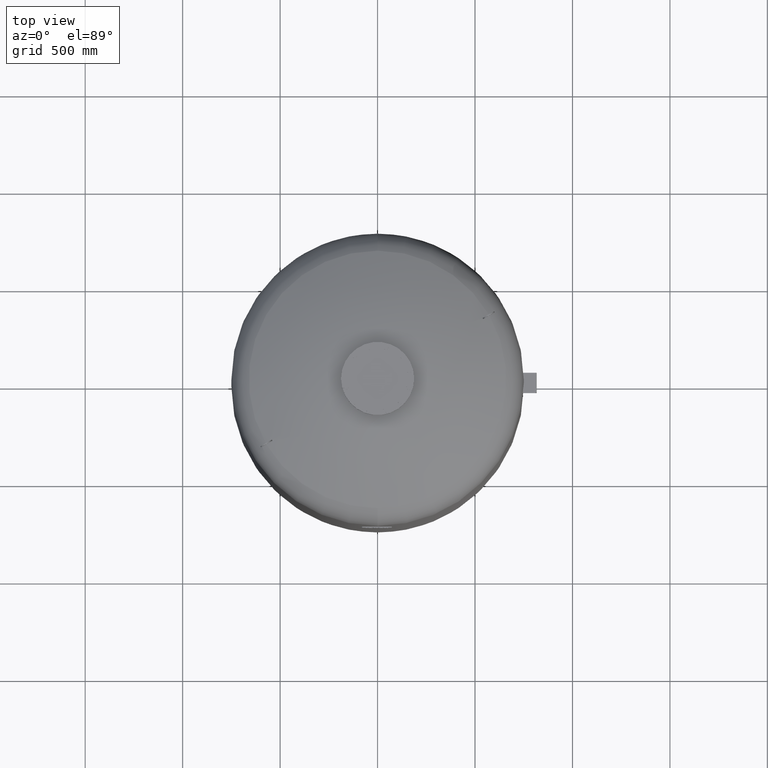
[diagram: clean part render]
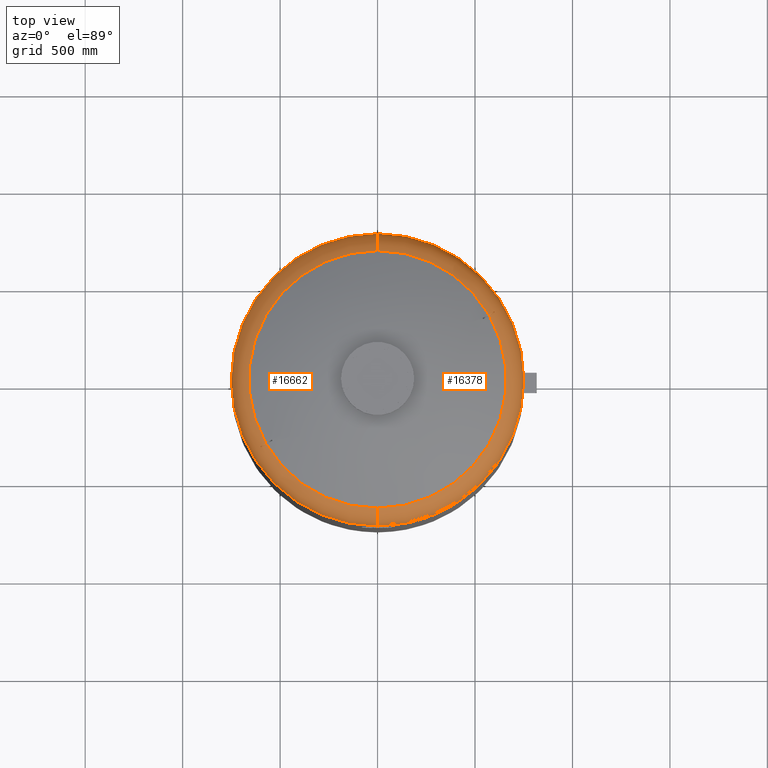
[diagram: same view with one multi-face feature highlighted, each face labeled with its STEP entity id]
A machine part, top view. The highlighted faces form ONE feature: a constant-radius fillet chain: 2 tangent blend faces with common blend radius 159 mm. The faces share edges in the B-rep.
Their STEP definitions:
[1] entity #16662 (Torus):
#16195=CARTESIAN_POINT('',(-750.0,3.761120E-014,2678.762332584101800));
#16196=VERTEX_POINT('',#16195);
#16203=CARTESIAN_POINT('',(1.267436E-013,750.0,2678.762332584101800));
#16204=VERTEX_POINT('',#16203);
#16205=CARTESIAN_POINT('',(1.459986E-014,-5.423428E-014,2678.762332584101800));
#16206=DIRECTION('',(0.0,0.0,-1.0));
#16207=DIRECTION('',(1.0,0.0,0.0));
#16208=AXIS2_PLACEMENT_3D('',#16205,#16206,#16207);
#16209=CIRCLE('',#16208,750.0);
#16210=EDGE_CURVE('',#16196,#16204,#16209,.T.);
#16290=CARTESIAN_POINT('',(3.489809E-014,-750.0,2678.762332584101800));
#16291=VERTEX_POINT('',#16290);
#16292=CARTESIAN_POINT('',(2.782883E-014,-660.606666666666800,2821.716562866229200));
#16293=VERTEX_POINT('',#16292);
#16294=CARTESIAN_POINT('',(3.489809E-014,-591.0,2678.762332584101800));
#16295=DIRECTION('',(-1.0,0.0,0.0));
#16296=DIRECTION('',(0.0,-1.0,0.0));
#16297=AXIS2_PLACEMENT_3D('',#16294,#16295,#16296);
#16298=CIRCLE('',#16297,159.0);
#16299=EDGE_CURVE('',#16291,#16293,#16298,.T.);
#16309=CARTESIAN_POINT('',(1.087271E-013,660.606666666666800,2821.716562866229200));
#16310=VERTEX_POINT('',#16309);
#16311=CARTESIAN_POINT('',(1.072723E-013,591.0,2678.762332584101800));
#16312=DIRECTION('',(1.0,0.0,0.0));
#16313=DIRECTION('',(0.0,1.0,0.0));
#16314=AXIS2_PLACEMENT_3D('',#16311,#16312,#16313);
#16315=CIRCLE('',#16314,159.0);
#16316=EDGE_CURVE('',#16204,#16310,#16315,.T.);
#16426=CARTESIAN_POINT('',(-570.596255916196580,-332.898003566952920,2821.716562866229700));
#16427=VERTEX_POINT('',#16426);
#16428=CARTESIAN_POINT('',(-588.588482349331340,-343.285820341443810,2809.575471650438900));
#16429=VERTEX_POINT('',#16428);
#16430=CARTESIAN_POINT('',(-570.596255916196580,-332.898003566952920,2821.716562866229700));
#16431=CARTESIAN_POINT('',(-572.053991207973350,-333.739627430067460,2820.896971483751700));
#16432=CARTESIAN_POINT('',(-573.514766784388030,-334.583006602336130,2820.038819520509200));
#16433=CARTESIAN_POINT('',(-576.976356895228950,-336.581556584654270,2817.913031156073000));
#16434=CARTESIAN_POINT('',(-578.974623379368950,-337.735256277185040,2816.612231014925300));
#16435=CARTESIAN_POINT('',(-582.931609407494880,-340.019823225703130,2813.881663004374300));
#16436=CARTESIAN_POINT('',(-584.890327860480620,-341.150689851801190,2812.451893026950500));
#16437=CARTESIAN_POINT('',(-587.410163811145820,-342.605517816231330,2810.507741414689900));
#16438=CARTESIAN_POINT('',(-588.001034993596930,-342.946657452475790,2810.044139472540300));
#16439=CARTESIAN_POINT('',(-588.588482349331340,-343.285820341443810,2809.575471650438900));
#16440=B_SPLINE_CURVE_WITH_KNOTS('',3,(#16430,#16431,#16432,#16433,#16434,#16435,#16436,#16437,#16438,#16439),.UNSPECIFIED.,.F.,.U.,(4,2,2,2,4),(774.656357685334110,780.010496801651020,787.369065281617960,794.727633761584910,796.996981542536560),.UNSPECIFIED.);
#16441=EDGE_CURVE('',#16427,#16429,#16440,.T.);
#16543=CARTESIAN_POINT('',(-591.588482349331340,-338.089667918737230,2809.575471650438900));
#16544=VERTEX_POINT('',#16543);
#16545=CARTESIAN_POINT('',(-588.588482349331340,-343.285820341443810,2809.575471650438900));
#16546=CARTESIAN_POINT('',(-589.090111222557650,-342.418391231104920,2809.578030124753200));
#16547=CARTESIAN_POINT('',(-589.590425441359340,-341.552525995020690,2809.579301453786200));
#16548=CARTESIAN_POINT('',(-590.089401200238290,-340.688274628897030,2809.579301453786200));
#16549=CARTESIAN_POINT('',(-590.588376959113930,-339.824023262779290,2809.579301453786200));
#16550=CARTESIAN_POINT('',(-591.088081140412330,-338.957805821386390,2809.578030124753200));
#16551=CARTESIAN_POINT('',(-591.588482349331340,-338.089667918737230,2809.575471650438900));
#16552=B_SPLINE_CURVE_WITH_KNOTS('',3,(#16545,#16546,#16547,#16548,#16549,#16550,#16551),.UNSPECIFIED.,.F.,.U.,(4,3,4),(-2.993854553274037,0.0,2.993854553253479),.UNSPECIFIED.);
#16553=EDGE_CURVE('',#16429,#16544,#16552,.T.);
#16578=CARTESIAN_POINT('',(-573.596255916196580,-327.701851144246290,2821.716562866229700));
#16579=VERTEX_POINT('',#16578);
#16580=CARTESIAN_POINT('',(-591.588482349331340,-338.089667918737230,2809.575471650438900));
#16581=CARTESIAN_POINT('',(-591.001091399295430,-337.750537595614450,2810.044094471851200));
#16582=CARTESIAN_POINT('',(-590.410277309616280,-337.409430921897070,2810.507652363015000));
#16583=CARTESIAN_POINT('',(-587.890496100690370,-335.954634562624850,2812.451768031998700));
#16584=CARTESIAN_POINT('',(-585.931774475118230,-334.823766104833230,2813.881544856047600));
#16585=CARTESIAN_POINT('',(-581.974781685757190,-332.539195252714250,2816.612126014599200));
#16586=CARTESIAN_POINT('',(-579.976511612969600,-331.385493488276780,2817.912932457119000));
#16587=CARTESIAN_POINT('',(-576.514867502691460,-329.386912329369070,2820.038760350182700));
#16588=CARTESIAN_POINT('',(-575.054041405248540,-328.543503988771140,2820.896943261032400));
#16589=CARTESIAN_POINT('',(-573.596255916196580,-327.701851144246290,2821.716562866229700));
#16590=B_SPLINE_CURVE_WITH_KNOTS('',3,(#16580,#16581,#16582,#16583,#16584,#16585,#16586,#16587,#16588,#16589),.UNSPECIFIED.,.F.,.U.,(4,2,2,2,4),(144.901635701804910,147.170765481127490,154.529352849647950,161.887940218168410,167.242267557251490),.UNSPECIFIED.);
#16591=EDGE_CURVE('',#16544,#16579,#16590,.T.);
#16628=CARTESIAN_POINT('',(3.489809E-014,-5.423428E-014,2678.762332584101800));
#16629=DIRECTION('',(4.945121E-017,-1.836970E-016,-1.0));
#16630=DIRECTION('',(0.0,-1.0,0.0));
#16631=AXIS2_PLACEMENT_3D('',#16628,#16629,#16630);
#16632=TOROIDAL_SURFACE('',#16631,591.0,159.0);
#16633=ORIENTED_EDGE('',*,*,#16299,.T.);
#16634=CARTESIAN_POINT('',(7.530601E-015,-2.797401E-014,2821.716562866229200));
#16635=DIRECTION('',(0.0,0.0,-1.0));
#16636=DIRECTION('',(1.0,0.0,0.0));
#16637=AXIS2_PLACEMENT_3D('',#16634,#16635,#16636);
#16638=CIRCLE('',#16637,660.606666666666800);
#16639=EDGE_CURVE('',#16293,#16427,#16638,.T.);
#16640=ORIENTED_EDGE('',*,*,#16639,.T.);
#16641=ORIENTED_EDGE('',*,*,#16441,.T.);
#16642=ORIENTED_EDGE('',*,*,#16553,.T.);
#16643=ORIENTED_EDGE('',*,*,#16591,.T.);
#16644=CARTESIAN_POINT('',(7.530601E-015,-2.797401E-014,2821.716562866229200));
#16645=DIRECTION('',(0.0,0.0,-1.0));
#16646=DIRECTION('',(1.0,0.0,0.0));
#16647=AXIS2_PLACEMENT_3D('',#16644,#16645,#16646);
#16648=CIRCLE('',#16647,660.606666666666800);
#16649=EDGE_CURVE('',#16579,#16310,#16648,.T.);
#16650=ORIENTED_EDGE('',*,*,#16649,.T.);
#16651=ORIENTED_EDGE('',*,*,#16316,.F.);
#16652=ORIENTED_EDGE('',*,*,#16210,.F.);
#16653=CARTESIAN_POINT('',(1.459986E-014,-5.423428E-014,2678.762332584101800));
#16654=DIRECTION('',(0.0,0.0,-1.0));
#16655=DIRECTION('',(1.0,0.0,0.0));
#16656=AXIS2_PLACEMENT_3D('',#16653,#16654,#16655);
#16657=CIRCLE('',#16656,750.0);
#16658=EDGE_CURVE('',#16291,#16196,#16657,.T.);
#16659=ORIENTED_EDGE('',*,*,#16658,.F.);
#16660=EDGE_LOOP('',(#16633,#16640,#16641,#16642,#16643,#16650,#16651,#16652,#16659));
#16661=FACE_OUTER_BOUND('',#16660,.T.);
#16662=ADVANCED_FACE('',(#16661),#16632,.T.);
[2] entity #16378 (Torus):
#16178=CARTESIAN_POINT('',(750.0,-5.423428E-014,2678.762332584101800));
#16179=VERTEX_POINT('',#16178);
#16203=CARTESIAN_POINT('',(1.267436E-013,750.0,2678.762332584101800));
#16204=VERTEX_POINT('',#16203);
#16212=CARTESIAN_POINT('',(1.459986E-014,-5.423428E-014,2678.762332584101800));
#16213=DIRECTION('',(0.0,0.0,-1.0));
#16214=DIRECTION('',(1.0,0.0,0.0));
#16215=AXIS2_PLACEMENT_3D('',#16212,#16213,#16214);
#16216=CIRCLE('',#16215,750.0);
#16217=EDGE_CURVE('',#16204,#16179,#16216,.T.);
#16285=CARTESIAN_POINT('',(3.489809E-014,-5.423428E-014,2678.762332584101800));
#16286=DIRECTION('',(4.945121E-017,-1.836970E-016,-1.0));
#16287=DIRECTION('',(0.0,-1.0,0.0));
#16288=AXIS2_PLACEMENT_3D('',#16285,#16286,#16287);
#16289=TOROIDAL_SURFACE('',#16288,591.0,159.0);
#16290=CARTESIAN_POINT('',(3.489809E-014,-750.0,2678.762332584101800));
#16291=VERTEX_POINT('',#16290);
#16292=CARTESIAN_POINT('',(2.782883E-014,-660.606666666666800,2821.716562866229200));
#16293=VERTEX_POINT('',#16292);
#16294=CARTESIAN_POINT('',(3.489809E-014,-591.0,2678.762332584101800));
#16295=DIRECTION('',(-1.0,0.0,0.0));
#16296=DIRECTION('',(0.0,-1.0,0.0));
#16297=AXIS2_PLACEMENT_3D('',#16294,#16295,#16296);
#16298=CIRCLE('',#16297,159.0);
#16299=EDGE_CURVE('',#16291,#16293,#16298,.T.);
#16300=ORIENTED_EDGE('',*,*,#16299,.F.);
#16301=CARTESIAN_POINT('',(1.459986E-014,-5.423428E-014,2678.762332584101800));
#16302=DIRECTION('',(0.0,0.0,-1.0));
#16303=DIRECTION('',(1.0,0.0,0.0));
#16304=AXIS2_PLACEMENT_3D('',#16301,#16302,#16303);
#16305=CIRCLE('',#16304,750.0);
#16306=EDGE_CURVE('',#16179,#16291,#16305,.T.);
#16307=ORIENTED_EDGE('',*,*,#16306,.F.);
#16308=ORIENTED_EDGE('',*,*,#16217,.F.);
#16309=CARTESIAN_POINT('',(1.087271E-013,660.606666666666800,2821.716562866229200));
#16310=VERTEX_POINT('',#16309);
#16311=CARTESIAN_POINT('',(1.072723E-013,591.0,2678.762332584101800));
#16312=DIRECTION('',(1.0,0.0,0.0));
#16313=DIRECTION('',(0.0,1.0,0.0));
#16314=AXIS2_PLACEMENT_3D('',#16311,#16312,#16313);
#16315=CIRCLE('',#16314,159.0);
#16316=EDGE_CURVE('',#16204,#16310,#16315,.T.);
#16317=ORIENTED_EDGE('',*,*,#16316,.T.);
#16318=CARTESIAN_POINT('',(570.596255916202270,332.898003566943030,2821.716562866229200));
#16319=VERTEX_POINT('',#16318);
#16320=CARTESIAN_POINT('',(7.530601E-015,-2.797401E-014,2821.716562866229200));
#16321=DIRECTION('',(0.0,0.0,-1.0));
#16322=DIRECTION('',(1.0,0.0,0.0));
#16323=AXIS2_PLACEMENT_3D('',#16320,#16321,#16322);
#16324=CIRCLE('',#16323,660.606666666666800);
#16325=EDGE_CURVE('',#16310,#16319,#16324,.T.);
#16326=ORIENTED_EDGE('',*,*,#16325,.T.);
#16327=CARTESIAN_POINT('',(588.588482349337030,343.285820341434260,2809.575471650438900));
#16328=VERTEX_POINT('',#16327);
#16329=CARTESIAN_POINT('',(570.596255916202270,332.898003566943030,2821.716562866229200));
#16330=CARTESIAN_POINT('',(572.054041405254220,333.739656411467930,2820.896943261032400));
#16331=CARTESIAN_POINT('',(573.514867502697370,334.583064752065810,2820.038760350182700));
#16332=CARTESIAN_POINT('',(576.976511612975400,336.581645910973690,2817.912932457119000));
#16333=CARTESIAN_POINT('',(578.974781685762880,337.735347675411160,2816.612126014599200));
#16334=CARTESIAN_POINT('',(582.931774475123920,340.019918527530190,2813.881544856047600));
#16335=CARTESIAN_POINT('',(584.890496100696050,341.150786985321820,2812.451768031998700));
#16336=CARTESIAN_POINT('',(587.410277309621960,342.605583344594150,2810.507652363015000));
#16337=CARTESIAN_POINT('',(588.001091399301120,342.946690018311470,2810.044094471851200));
#16338=CARTESIAN_POINT('',(588.588482349337030,343.285820341434260,2809.575471650438900));
#16339=B_SPLINE_CURVE_WITH_KNOTS('',3,(#16329,#16330,#16331,#16332,#16333,#16334,#16335,#16336,#16337,#16338),.UNSPECIFIED.,.F.,.U.,(4,2,2,2,4),(774.656358350488740,780.010685689572260,787.369273058092740,794.727860426613230,796.996990205935960),.UNSPECIFIED.);
#16340=EDGE_CURVE('',#16319,#16328,#16339,.T.);
#16341=ORIENTED_EDGE('',*,*,#16340,.T.);
#16342=CARTESIAN_POINT('',(591.588482349336690,338.089667918727570,2809.575471650438900));
#16343=VERTEX_POINT('',#16342);
#16344=CARTESIAN_POINT('',(588.588482349337030,343.285820341434260,2809.575471650438900));
#16345=CARTESIAN_POINT('',(589.090111222559810,342.418391231101340,2809.578030124753200));
#16346=CARTESIAN_POINT('',(589.590425441357980,341.552525995023070,2809.579301453786200));
#16347=CARTESIAN_POINT('',(590.089401200233620,340.688274628905390,2809.579301453786200));
#16348=CARTESIAN_POINT('',(590.588376959112570,339.824023262781680,2809.579301453786200));
#16349=CARTESIAN_POINT('',(591.088081140414260,338.957805821382750,2809.578030124753200));
#16350=CARTESIAN_POINT('',(591.588482349336690,338.089667918727570,2809.575471650438900));
#16351=B_SPLINE_CURVE_WITH_KNOTS('',3,(#16344,#16345,#16346,#16347,#16348,#16349,#16350),.UNSPECIFIED.,.F.,.U.,(4,3,4),(-2.993854553253430,0.0,2.993854553273963),.UNSPECIFIED.);
#16352=EDGE_CURVE('',#16328,#16343,#16351,.T.);
#16353=ORIENTED_EDGE('',*,*,#16352,.T.);
#16354=CARTESIAN_POINT('',(573.596255916202270,327.701851144236400,2821.716562866229200));
#16355=VERTEX_POINT('',#16354);
#16356=CARTESIAN_POINT('',(591.588482349336690,338.089667918727570,2809.575471650438900));
#16357=CARTESIAN_POINT('',(591.001034993602270,337.750505029759610,2810.044139472540300));
#16358=CARTESIAN_POINT('',(590.410163811151510,337.409365393515030,2810.507741414689900));
#16359=CARTESIAN_POINT('',(587.890327860486420,335.954537429084780,2812.451893026950100));
#16360=CARTESIAN_POINT('',(585.931609407500670,334.823670802986780,2813.881663004374300));
#16361=CARTESIAN_POINT('',(581.974623379374860,332.539103854468750,2816.612231014925300));
#16362=CARTESIAN_POINT('',(579.976356895234860,331.385404161938030,2817.913031156073000));
#16363=CARTESIAN_POINT('',(576.514766784393940,329.386854179619720,2820.038819520509200));
#16364=CARTESIAN_POINT('',(575.053991207979040,328.543475007350930,2820.896971483751700));
#16365=CARTESIAN_POINT('',(573.596255916202270,327.701851144236400,2821.716562866229200));
#16366=B_SPLINE_CURVE_WITH_KNOTS('',3,(#16356,#16357,#16358,#16359,#16360,#16361,#16362,#16363,#16364,#16365),.UNSPECIFIED.,.F.,.U.,(4,2,2,2,4),(144.901644365231360,147.170992146182750,154.529560626149700,161.888129106116650,167.242268222433860),.UNSPECIFIED.);
#16367=EDGE_CURVE('',#16343,#16355,#16366,.T.);
#16368=ORIENTED_EDGE('',*,*,#16367,.T.);
#16369=CARTESIAN_POINT('',(7.530601E-015,-2.797401E-014,2821.716562866229200));
#16370=DIRECTION('',(0.0,0.0,-1.0));
#16371=DIRECTION('',(1.0,0.0,0.0));
#16372=AXIS2_PLACEMENT_3D('',#16369,#16370,#16371);
#16373=CIRCLE('',#16372,660.606666666666800);
#16374=EDGE_CURVE('',#16355,#16293,#16373,.T.);
#16375=ORIENTED_EDGE('',*,*,#16374,.T.);
#16376=EDGE_LOOP('',(#16300,#16307,#16308,#16317,#16326,#16341,#16353,#16368,#16375));
#16377=FACE_OUTER_BOUND('',#16376,.T.);
#16378=ADVANCED_FACE('',(#16377),#16289,.T.);